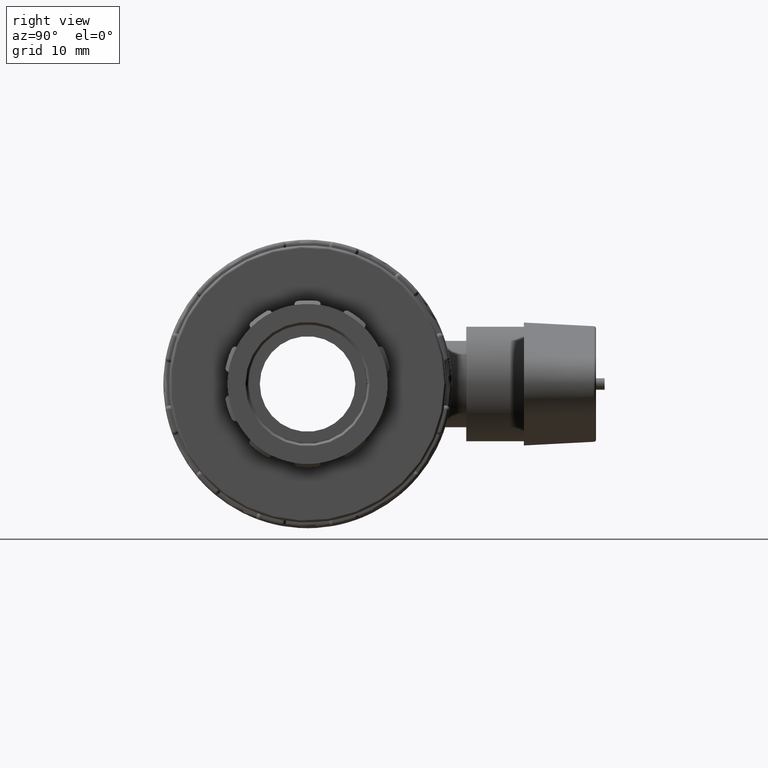
[diagram: clean part render]
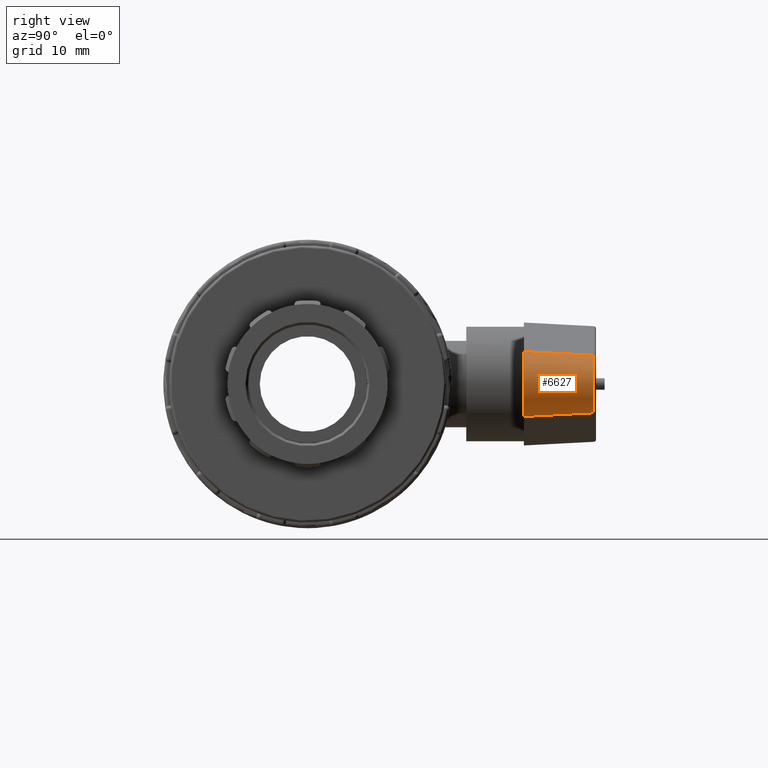
[diagram: same view with one face highlighted and labeled with its STEP entity id]
A machine part, right view. The second image highlights one B-rep face of the part: STEP entity #6627.
In plain terms, the highlighted conical surface has half-angle 3 deg.
Its self-contained STEP definition (entity closure, byte-faithful):
#341=CONICAL_SURFACE('',#7080,4.5,3.);
#430=FACE_OUTER_BOUND('',#864,.T.);
#864=EDGE_LOOP('',(#4361,#4362,#4363,#4364));
#1324=LINE('',#10367,#1720);
#1326=LINE('',#10371,#1722);
#1720=VECTOR('',#8072,10.9118357156273);
#1722=VECTOR('',#8076,10.9118357156273);
#2110=CIRCLE('',#7059,4.51850616039095);
#2123=CIRCLE('',#7081,5.08958751693422);
#2627=VERTEX_POINT('',#10315);
#2629=VERTEX_POINT('',#10321);
#2643=VERTEX_POINT('',#10366);
#2644=VERTEX_POINT('',#10370);
#3275=EDGE_CURVE('',#2627,#2629,#2110,.T.);
#3296=EDGE_CURVE('',#2629,#2643,#1324,.T.);
#3298=EDGE_CURVE('',#2627,#2644,#1326,.T.);
#3299=EDGE_CURVE('',#2644,#2643,#2123,.T.);
#4361=ORIENTED_EDGE('',*,*,#3275,.F.);
#4362=ORIENTED_EDGE('',*,*,#3298,.T.);
#4363=ORIENTED_EDGE('',*,*,#3299,.T.);
#4364=ORIENTED_EDGE('',*,*,#3296,.F.);
#6627=ADVANCED_FACE('',(#430),#341,.T.);
#7059=AXIS2_PLACEMENT_3D('',#10325,#8022,#8023);
#7080=AXIS2_PLACEMENT_3D('',#10369,#8074,#8075);
#7081=AXIS2_PLACEMENT_3D('',#10372,#8077,#8078);
#8022=DIRECTION('center_axis',(0.,1.,0.));
#8023=DIRECTION('ref_axis',(1.,0.,6.12323399573677E-17));
#8072=DIRECTION('',(0.00645237816693868,-0.998629534754574,-0.0519366838742536));
#8074=DIRECTION('center_axis',(3.94745964311167E-16,-1.,0.));
#8075=DIRECTION('ref_axis',(1.,3.06161699786838E-16,0.));
#8076=DIRECTION('',(0.00645237816693862,-0.998629534754574,0.0519366838742535));
#8077=DIRECTION('center_axis',(-3.06161699786838E-16,1.,0.));
#8078=DIRECTION('ref_axis',(1.,3.06161699786838E-16,0.));
#10315=CARTESIAN_POINT('',(37.057076101966,44.6468814240152,4.48403435960401));
#10321=CARTESIAN_POINT('',(37.057076101966,44.6468814240153,-4.484034359604));
#10325=CARTESIAN_POINT('Origin',(36.5,44.6468814240153,-2.76678705312519E-16));
#10366=CARTESIAN_POINT('',(37.1274833924987,33.75,-5.05075892165434));
#10367=CARTESIAN_POINT('',(37.0547945205479,45.,-4.46566938319105));
#10369=CARTESIAN_POINT('Origin',(36.5,45.,0.));
#10370=CARTESIAN_POINT('',(37.1274833924987,33.75,5.05075892165434));
#10371=CARTESIAN_POINT('',(37.0547945205479,45.,4.46566938319106));
#10372=CARTESIAN_POINT('Origin',(36.5,33.75,0.));